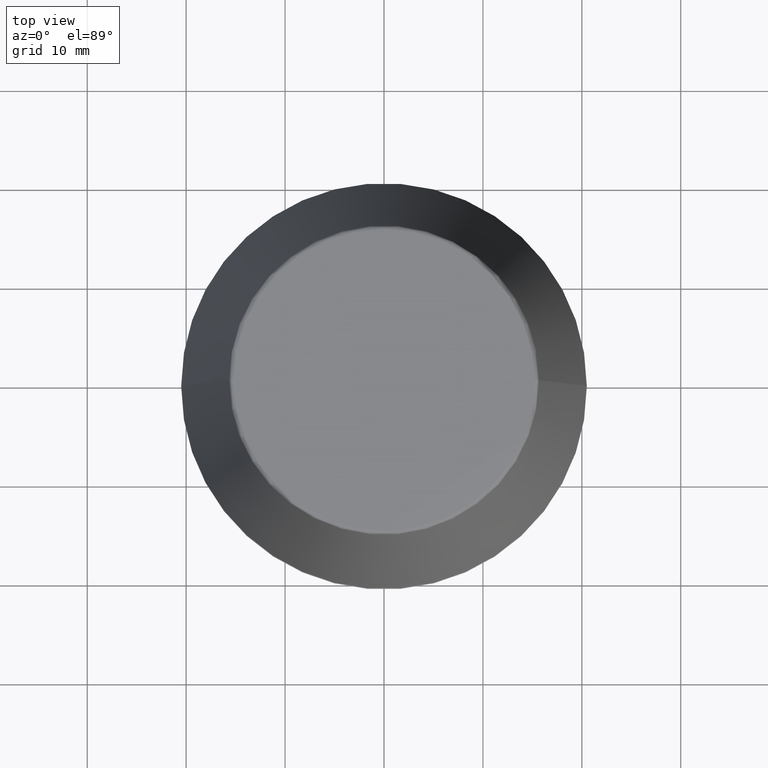
[diagram: clean part render]
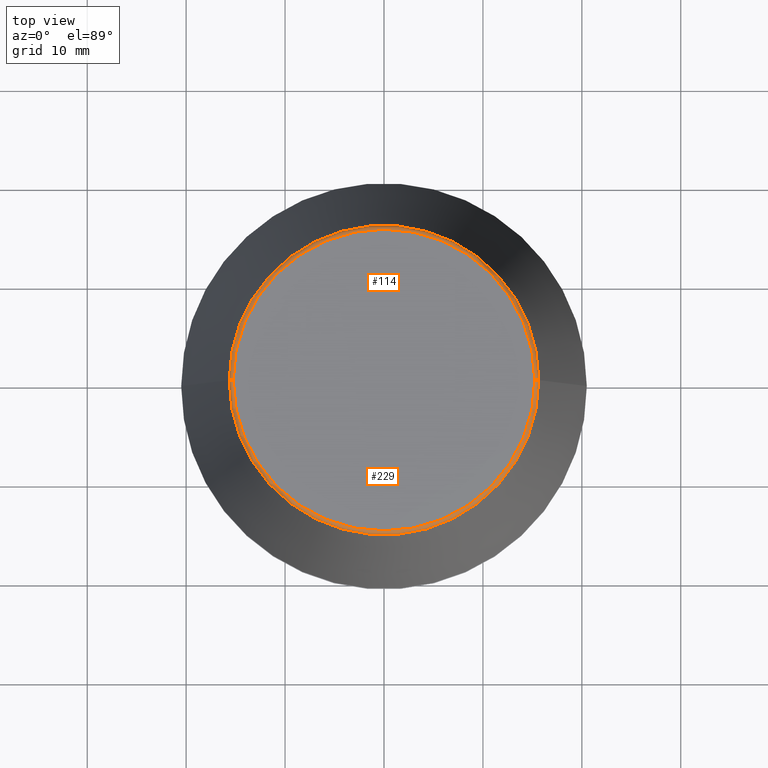
[diagram: same view with one multi-face feature highlighted, each face labeled with its STEP entity id]
A machine part, top view. The highlighted faces form ONE feature: a constant-radius fillet chain: 2 tangent blend faces with common blend radius 0.4 mm. The faces share edges in the B-rep.
Their STEP definitions:
[1] entity #114 (Torus):
#7 = VERTEX_POINT ( 'NONE', #344 ) ;
#17 = DIRECTION ( 'NONE',  ( 1.000000000000000000, 0.0000000000000000000, 0.0000000000000000000 ) ) ;
#36 = DIRECTION ( 'NONE',  ( 1.000000000000000000, 0.0000000000000000000, 0.0000000000000000000 ) ) ;
#44 = AXIS2_PLACEMENT_3D ( 'NONE', #142, #369, #36 ) ;
#46 = CARTESIAN_POINT ( 'NONE',  ( 0.0000000000000000000, 0.0000000000000000000, 46.00000000000000000 ) ) ;
#49 = VERTEX_POINT ( 'NONE', #203 ) ;
#61 = AXIS2_PLACEMENT_3D ( 'NONE', #231, #121, #144 ) ;
#71 = EDGE_CURVE ( 'NONE', #7, #49, #265, .T. ) ;
#96 = EDGE_LOOP ( 'NONE', ( #228, #312, #248, #156 ) ) ;
#107 = DIRECTION ( 'NONE',  ( 0.0000000000000000000, -1.000000000000000000, 0.0000000000000000000 ) ) ;
#114 = ADVANCED_FACE ( 'NONE', ( #269 ), #374, .T. ) ;
#120 = DIRECTION ( 'NONE',  ( -0.0000000000000000000, -0.0000000000000000000, 1.000000000000000000 ) ) ;
#121 = DIRECTION ( 'NONE',  ( 1.224646799147353200E-016, 1.000000000000000000, 0.0000000000000000000 ) ) ;
#126 = DIRECTION ( 'NONE',  ( -0.0000000000000000000, -0.0000000000000000000, 1.000000000000000000 ) ) ;
#132 = CARTESIAN_POINT ( 'NONE',  ( 15.64384277279740400, 2.213191991290356800E-015, 45.65566924038402900 ) ) ;
#142 = CARTESIAN_POINT ( 'NONE',  ( 0.0000000000000000000, 0.0000000000000000000, 45.65566924038402900 ) ) ;
#143 = EDGE_CURVE ( 'NONE', #172, #7, #281, .T. ) ;
#144 = DIRECTION ( 'NONE',  ( -1.000000000000000000, 1.224646799147353900E-016, 0.0000000000000000000 ) ) ;
#156 = ORIENTED_EDGE ( 'NONE', *, *, #210, .F. ) ;
#167 = CARTESIAN_POINT ( 'NONE',  ( 0.0000000000000000000, 0.0000000000000000000, 45.60000000000000100 ) ) ;
#172 = VERTEX_POINT ( 'NONE', #132 ) ;
#187 = DIRECTION ( 'NONE',  ( 0.0000000000000000000, 0.0000000000000000000, -1.000000000000000000 ) ) ;
#203 = CARTESIAN_POINT ( 'NONE',  ( -15.24773554530077600, 1.891563625393435400E-015, 46.00000000000000000 ) ) ;
#210 = EDGE_CURVE ( 'NONE', #172, #250, #294, .T. ) ;
#218 = AXIS2_PLACEMENT_3D ( 'NONE', #46, #126, #255 ) ;
#228 = ORIENTED_EDGE ( 'NONE', *, *, #143, .T. ) ;
#231 = CARTESIAN_POINT ( 'NONE',  ( -15.24773554530077600, 1.867309052979791600E-015, 45.60000000000000100 ) ) ;
#248 = ORIENTED_EDGE ( 'NONE', *, *, #321, .F. ) ;
#250 = VERTEX_POINT ( 'NONE', #266 ) ;
#255 = DIRECTION ( 'NONE',  ( 1.000000000000000000, 0.0000000000000000000, 0.0000000000000000000 ) ) ;
#265 = CIRCLE ( 'NONE', #61, 0.3999999999999975800 ) ;
#266 = CARTESIAN_POINT ( 'NONE',  ( 15.24773554530077600, 0.0000000000000000000, 46.00000000000000000 ) ) ;
#269 = FACE_OUTER_BOUND ( 'NONE', #96, .T. ) ;
#281 = CIRCLE ( 'NONE', #44, 15.64384277279740400 ) ;
#294 = CIRCLE ( 'NONE', #364, 0.3999999999999975800 ) ;
#311 = CIRCLE ( 'NONE', #218, 15.24773554530077600 ) ;
#312 = ORIENTED_EDGE ( 'NONE', *, *, #71, .T. ) ;
#321 = EDGE_CURVE ( 'NONE', #250, #49, #311, .T. ) ;
#344 = CARTESIAN_POINT ( 'NONE',  ( -15.64384277279740400, 0.0000000000000000000, 45.65566924038402900 ) ) ;
#364 = AXIS2_PLACEMENT_3D ( 'NONE', #365, #107, #187 ) ;
#365 = CARTESIAN_POINT ( 'NONE',  ( 15.24773554530077600, 0.0000000000000000000, 45.60000000000000100 ) ) ;
#369 = DIRECTION ( 'NONE',  ( -0.0000000000000000000, -0.0000000000000000000, 1.000000000000000000 ) ) ;
#374 = TOROIDAL_SURFACE ( 'NONE', #379, 15.24773554530077600, 0.3999999999999991900 ) ;
#379 = AXIS2_PLACEMENT_3D ( 'NONE', #167, #120, #17 ) ;
[2] entity #229 (Torus):
#2 = DIRECTION ( 'NONE',  ( -0.0000000000000000000, -0.0000000000000000000, 1.000000000000000000 ) ) ;
#7 = VERTEX_POINT ( 'NONE', #344 ) ;
#29 = DIRECTION ( 'NONE',  ( 1.000000000000000000, 0.0000000000000000000, 0.0000000000000000000 ) ) ;
#30 = DIRECTION ( 'NONE',  ( 1.000000000000000000, 0.0000000000000000000, 0.0000000000000000000 ) ) ;
#33 = DIRECTION ( 'NONE',  ( -0.0000000000000000000, -0.0000000000000000000, 1.000000000000000000 ) ) ;
#49 = VERTEX_POINT ( 'NONE', #203 ) ;
#51 = ORIENTED_EDGE ( 'NONE', *, *, #71, .F. ) ;
#61 = AXIS2_PLACEMENT_3D ( 'NONE', #231, #121, #144 ) ;
#71 = EDGE_CURVE ( 'NONE', #7, #49, #265, .T. ) ;
#107 = DIRECTION ( 'NONE',  ( 0.0000000000000000000, -1.000000000000000000, 0.0000000000000000000 ) ) ;
#117 = ORIENTED_EDGE ( 'NONE', *, *, #210, .T. ) ;
#121 = DIRECTION ( 'NONE',  ( 1.224646799147353200E-016, 1.000000000000000000, 0.0000000000000000000 ) ) ;
#131 = AXIS2_PLACEMENT_3D ( 'NONE', #224, #2, #30 ) ;
#132 = CARTESIAN_POINT ( 'NONE',  ( 15.64384277279740400, 2.213191991290356800E-015, 45.65566924038402900 ) ) ;
#141 = AXIS2_PLACEMENT_3D ( 'NONE', #357, #33, #29 ) ;
#144 = DIRECTION ( 'NONE',  ( -1.000000000000000000, 1.224646799147353900E-016, 0.0000000000000000000 ) ) ;
#153 = DIRECTION ( 'NONE',  ( -0.0000000000000000000, -0.0000000000000000000, 1.000000000000000000 ) ) ;
#159 = ORIENTED_EDGE ( 'NONE', *, *, #337, .T. ) ;
#160 = EDGE_LOOP ( 'NONE', ( #51, #159, #117, #182 ) ) ;
#172 = VERTEX_POINT ( 'NONE', #132 ) ;
#182 = ORIENTED_EDGE ( 'NONE', *, *, #385, .F. ) ;
#187 = DIRECTION ( 'NONE',  ( 0.0000000000000000000, 0.0000000000000000000, -1.000000000000000000 ) ) ;
#203 = CARTESIAN_POINT ( 'NONE',  ( -15.24773554530077600, 1.891563625393435400E-015, 46.00000000000000000 ) ) ;
#210 = EDGE_CURVE ( 'NONE', #172, #250, #294, .T. ) ;
#224 = CARTESIAN_POINT ( 'NONE',  ( 0.0000000000000000000, 0.0000000000000000000, 46.00000000000000000 ) ) ;
#229 = ADVANCED_FACE ( 'NONE', ( #297 ), #304, .T. ) ;
#231 = CARTESIAN_POINT ( 'NONE',  ( -15.24773554530077600, 1.867309052979791600E-015, 45.60000000000000100 ) ) ;
#250 = VERTEX_POINT ( 'NONE', #266 ) ;
#265 = CIRCLE ( 'NONE', #61, 0.3999999999999975800 ) ;
#266 = CARTESIAN_POINT ( 'NONE',  ( 15.24773554530077600, 0.0000000000000000000, 46.00000000000000000 ) ) ;
#294 = CIRCLE ( 'NONE', #364, 0.3999999999999975800 ) ;
#295 = DIRECTION ( 'NONE',  ( 1.000000000000000000, 0.0000000000000000000, 0.0000000000000000000 ) ) ;
#297 = FACE_OUTER_BOUND ( 'NONE', #160, .T. ) ;
#304 = TOROIDAL_SURFACE ( 'NONE', #141, 15.24773554530077600, 0.3999999999999991900 ) ;
#307 = AXIS2_PLACEMENT_3D ( 'NONE', #356, #153, #295 ) ;
#326 = CIRCLE ( 'NONE', #307, 15.64384277279740400 ) ;
#337 = EDGE_CURVE ( 'NONE', #7, #172, #326, .T. ) ;
#344 = CARTESIAN_POINT ( 'NONE',  ( -15.64384277279740400, 0.0000000000000000000, 45.65566924038402900 ) ) ;
#345 = CIRCLE ( 'NONE', #131, 15.24773554530077600 ) ;
#356 = CARTESIAN_POINT ( 'NONE',  ( 0.0000000000000000000, 0.0000000000000000000, 45.65566924038402900 ) ) ;
#357 = CARTESIAN_POINT ( 'NONE',  ( 0.0000000000000000000, 0.0000000000000000000, 45.60000000000000100 ) ) ;
#364 = AXIS2_PLACEMENT_3D ( 'NONE', #365, #107, #187 ) ;
#365 = CARTESIAN_POINT ( 'NONE',  ( 15.24773554530077600, 0.0000000000000000000, 45.60000000000000100 ) ) ;
#385 = EDGE_CURVE ( 'NONE', #49, #250, #345, .T. ) ;